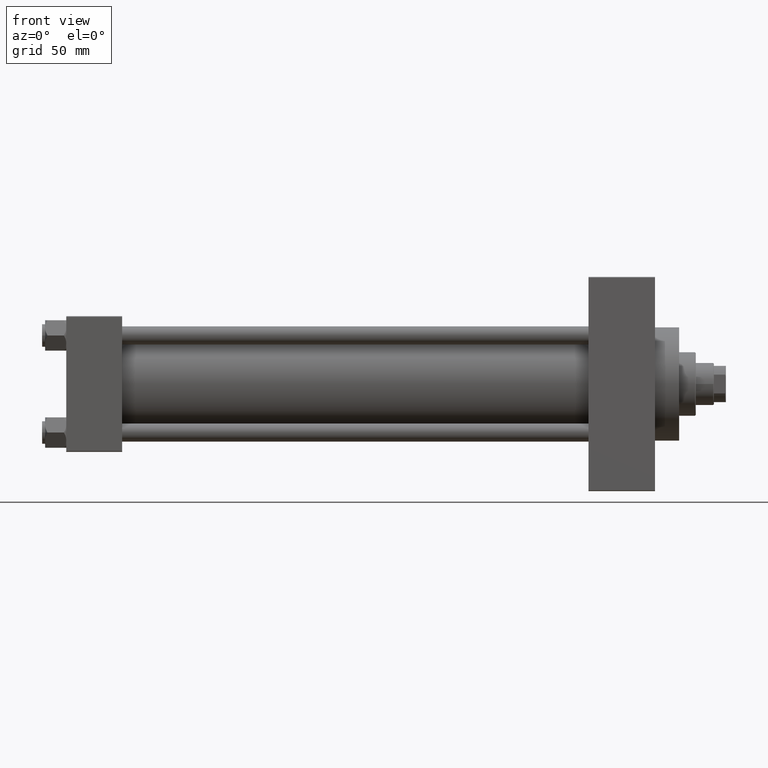
[diagram: clean part render]
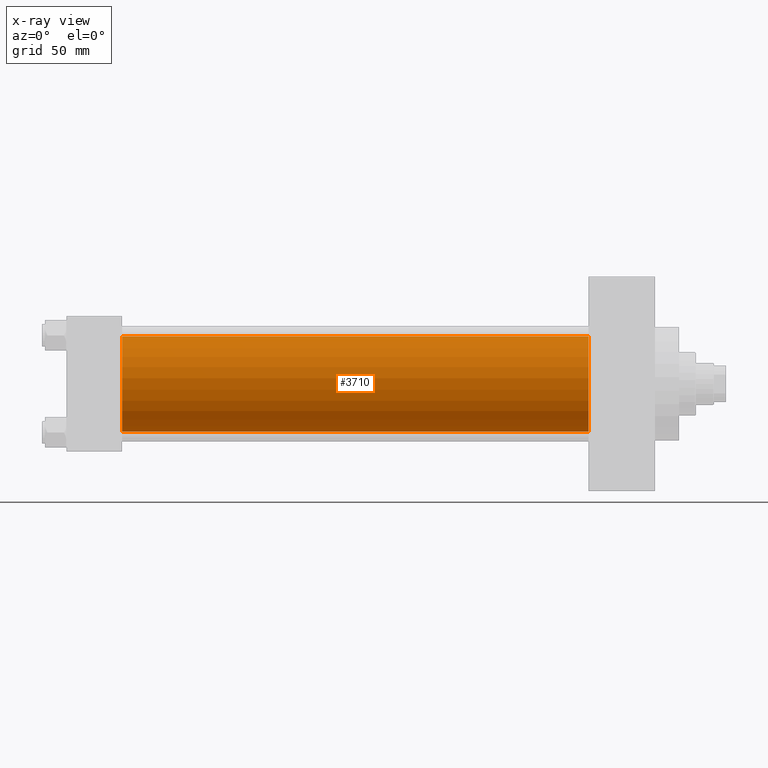
[diagram: x-ray — body ghosted, one internal face saturated and labeled with its STEP entity id]
A machine part, front view, then the same camera in x-ray: the body is ghosted and one INTERNAL B-rep face — a face not visible from any outside direction — is saturated and labeled: STEP entity #3710.
In plain terms, the highlighted cylindrical surface (partial cylindrical patch) has radius 31.5 mm, axis along (-1, -0, -0).
Its self-contained STEP definition (entity closure, byte-faithful):
#146 = DIRECTION ( 'NONE',  ( -1.000000000000000000, -0.000000000000000000, -0.000000000000000000 ) ) ;
#824 = EDGE_CURVE ( 'NONE', #1213, #46772, #17354, .T. ) ;
#1213 = VERTEX_POINT ( 'NONE', #46706 ) ;
#1376 = DIRECTION ( 'NONE',  ( 1.000000000000000000, 0.000000000000000000, 0.000000000000000000 ) ) ;
#2315 = VECTOR ( 'NONE', #23073, 1000.000000000000000 ) ;
#3710 = ADVANCED_FACE ( 'NONE', ( #41880 ), #4241, .F. ) ;
#4241 = CYLINDRICAL_SURFACE ( 'NONE', #10279, 31.50000000000000000 ) ;
#5186 = ORIENTED_EDGE ( 'NONE', *, *, #824, .F. ) ;
#6567 = EDGE_CURVE ( 'NONE', #20981, #1213, #44760, .T. ) ;
#7369 = CARTESIAN_POINT ( 'NONE',  ( 346.0000000000000000, -2.602085213965210642E-15, 31.50000000000000000 ) ) ;
#8000 = VECTOR ( 'NONE', #146, 1000.000000000000000 ) ;
#8661 = CARTESIAN_POINT ( 'NONE',  ( 346.0000000000000000, 1.255552203348951850E-15, -31.50000000000000000 ) ) ;
#10279 = AXIS2_PLACEMENT_3D ( 'NONE', #30655, #34650, #37888 ) ;
#11321 = CIRCLE ( 'NONE', #28830, 31.50000000000000000 ) ;
#11600 = CARTESIAN_POINT ( 'NONE',  ( 346.0000000000000000, 1.255552203348951850E-15, -31.50000000000000000 ) ) ;
#12116 = ORIENTED_EDGE ( 'NONE', *, *, #6567, .F. ) ;
#12683 = EDGE_LOOP ( 'NONE', ( #17411, #25339, #5186, #12116 ) ) ;
#13502 = EDGE_CURVE ( 'NONE', #20981, #42666, #11321, .T. ) ;
#16570 = DIRECTION ( 'NONE',  ( 0.000000000000000000, 0.000000000000000000, -1.000000000000000000 ) ) ;
#17354 = CIRCLE ( 'NONE', #17466, 31.50000000000000000 ) ;
#17411 = ORIENTED_EDGE ( 'NONE', *, *, #13502, .T. ) ;
#17466 = AXIS2_PLACEMENT_3D ( 'NONE', #19612, #23834, #41787 ) ;
#18283 = CARTESIAN_POINT ( 'NONE',  ( 346.0000000000000000, -2.602085213965210642E-15, 31.50000000000000000 ) ) ;
#19082 = LINE ( 'NONE', #11600, #2315 ) ;
#19612 = CARTESIAN_POINT ( 'NONE',  ( 37.00000000000000000, -2.602085213965210642E-15, 0.000000000000000000 ) ) ;
#20319 = CARTESIAN_POINT ( 'NONE',  ( 346.0000000000000000, -2.602085213965210642E-15, 0.000000000000000000 ) ) ;
#20981 = VERTEX_POINT ( 'NONE', #18283 ) ;
#23073 = DIRECTION ( 'NONE',  ( -1.000000000000000000, -0.000000000000000000, -0.000000000000000000 ) ) ;
#23834 = DIRECTION ( 'NONE',  ( 1.000000000000000000, 0.000000000000000000, 0.000000000000000000 ) ) ;
#24363 = EDGE_CURVE ( 'NONE', #42666, #46772, #19082, .T. ) ;
#25339 = ORIENTED_EDGE ( 'NONE', *, *, #24363, .T. ) ;
#28830 = AXIS2_PLACEMENT_3D ( 'NONE', #20319, #1376, #16570 ) ;
#30655 = CARTESIAN_POINT ( 'NONE',  ( 346.0000000000000000, -2.602085213965210642E-15, 0.000000000000000000 ) ) ;
#34650 = DIRECTION ( 'NONE',  ( -1.000000000000000000, -0.000000000000000000, -0.000000000000000000 ) ) ;
#37888 = DIRECTION ( 'NONE',  ( 0.000000000000000000, 0.000000000000000000, 1.000000000000000000 ) ) ;
#38867 = CARTESIAN_POINT ( 'NONE',  ( 37.00000000000000000, 1.255552203348951850E-15, -31.50000000000000000 ) ) ;
#41787 = DIRECTION ( 'NONE',  ( 0.000000000000000000, 0.000000000000000000, -1.000000000000000000 ) ) ;
#41880 = FACE_OUTER_BOUND ( 'NONE', #12683, .T. ) ;
#42666 = VERTEX_POINT ( 'NONE', #8661 ) ;
#44760 = LINE ( 'NONE', #7369, #8000 ) ;
#46706 = CARTESIAN_POINT ( 'NONE',  ( 37.00000000000000000, -2.602085213965210642E-15, 31.50000000000000000 ) ) ;
#46772 = VERTEX_POINT ( 'NONE', #38867 ) ;